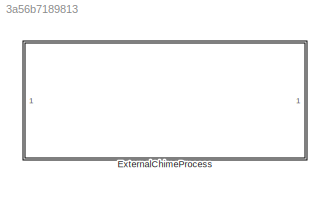
MODEL slx_3a56b7189813
KIND library
CONFIG AbsTol = auto
CONFIG EnableMultiTasking = off
CONFIG FixedStep = auto
CONFIG MaxStep = auto
CONFIG MinStep = auto
CONFIG RelTol = 1e-3
CONFIG SampleTimeConstraint = Unconstrained
CONFIG SolverName = VariableStepAuto
CONFIG StartTime = 0.0
CONFIG StopTime = 10.0
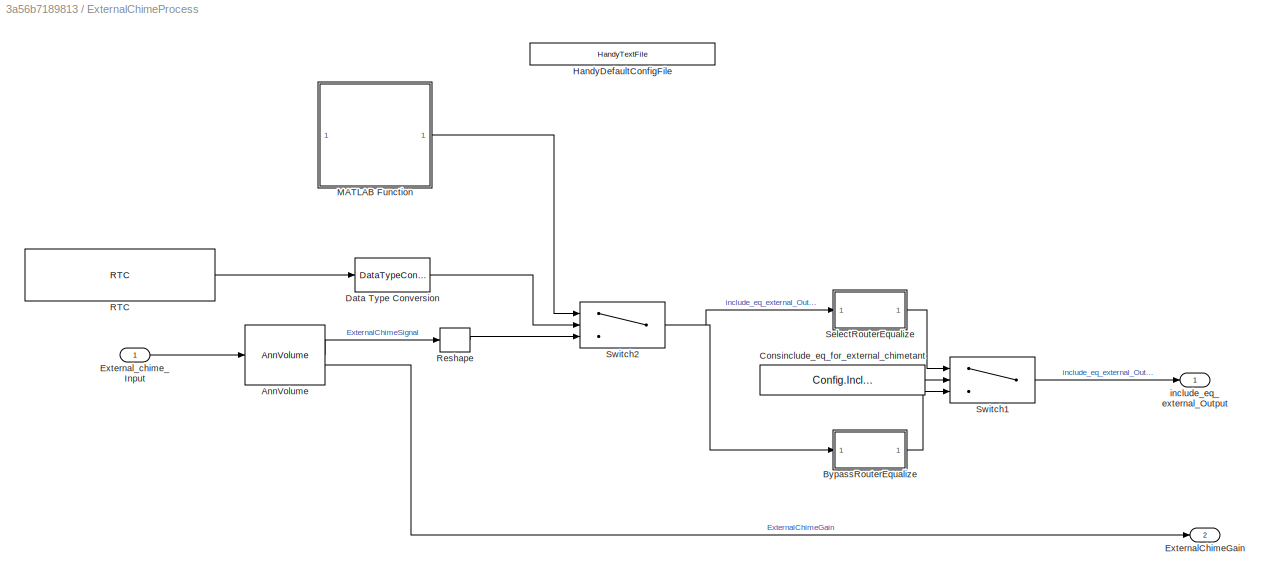
BLOCK [SubSystem] ExternalChimeProcess
BLOCK [Reference] ExternalChimeProcess/AnnVolume  REF=AnnVolumeBtc/AnnVolume
  SourceBlock = AnnVolumeBtc/AnnVolume
  SourceProductName = Bose Blocklib
  SourceType = Blocklib AnnVolume
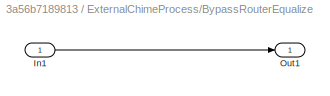
BLOCK [SubSystem] ExternalChimeProcess/BypassRouterEqualize
  TreatAsAtomicUnit = on
BLOCK [Inport] ExternalChimeProcess/BypassRouterEqualize/In1
  OutDataTypeStr = single
BLOCK [Outport] ExternalChimeProcess/BypassRouterEqualize/Out1
  OutDataTypeStr = single
  VectorParamsAs1DForOutWhenUnconnected = off
BLOCK [Constant] ExternalChimeProcess/Consinclude_eq_for_external_chimetant
  OutDataTypeStr = boolean
  Value = Config.IncludeEq
  VectorParams1D = off
BLOCK [DataTypeConversion] ExternalChimeProcess/Data Type Conversion
  OutDataTypeStr = single
  RndMeth = Floor
  SaturateOnIntegerOverflow = off
BLOCK [Outport] ExternalChimeProcess/ExternalChimeGain
  Port = 2
BLOCK [Inport] ExternalChimeProcess/External_chime_Input
BLOCK [Reference] ExternalChimeProcess/HandyDefaultConfigFile  REF=HandyTextFile/HandyTextFile
  SourceBlock = HandyTextFile/HandyTextFile
  SourceProductName = Bose Talaria
  SourceType = Talaria Handy Text File
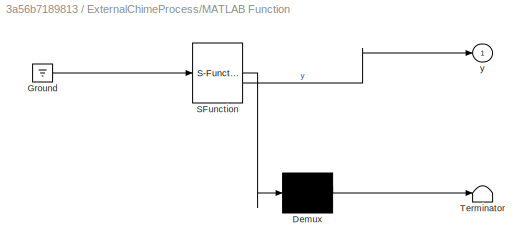
BLOCK [SubSystem] ExternalChimeProcess/MATLAB Function
  ErrorFcn = Stateflow.Translate.translate
  PermitHierarchicalResolution = ExplicitOnly
  SFBlockType = MATLAB Function
  TreatAsAtomicUnit = on
BLOCK [Demux] ExternalChimeProcess/MATLAB Function/ Demux 
  Outputs = 1
BLOCK [Ground] ExternalChimeProcess/MATLAB Function/ Ground 
BLOCK [S-Function] ExternalChimeProcess/MATLAB Function/ SFunction 
  EnableBusSupport = off
  FunctionName = sf_sfun
  Parameters = frameSize,numExtChimes
  PortCounts = [1 2]
  SFcnIsStateOwnerBlock = off
  SFunctionDeploymentMode = off
  Tag = Stateflow S-Function 2
BLOCK [Terminator] ExternalChimeProcess/MATLAB Function/ Terminator 
BLOCK [Outport] ExternalChimeProcess/MATLAB Function/y
BLOCK [Reference] ExternalChimeProcess/RTC  REF=RTC/RTC
  SourceBlock = RTC/RTC
  SourceProductName = Bose Talaria
  SourceType = Talaria RTC Receive
BLOCK [Reshape] ExternalChimeProcess/Reshape
  OutputDimensionality = Customize
  OutputDimensions = [Config.FrameSize,Config.NumExtChimes]
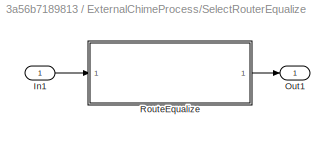
BLOCK [SubSystem] ExternalChimeProcess/SelectRouterEqualize
  TreatAsAtomicUnit = on
BLOCK [Inport] ExternalChimeProcess/SelectRouterEqualize/In1
BLOCK [Outport] ExternalChimeProcess/SelectRouterEqualize/Out1
  VectorParamsAs1DForOutWhenUnconnected = off
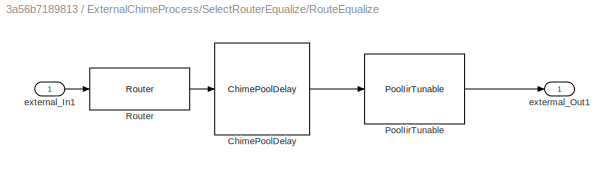
BLOCK [SubSystem] ExternalChimeProcess/SelectRouterEqualize/RouteEqualize
BLOCK [Reference] ExternalChimeProcess/SelectRouterEqualize/RouteEqualize/ChimePoolDelay  REF=ChimePoolDelayLibBtc/ChimePoolDelay
  SourceBlock = ChimePoolDelayLibBtc/ChimePoolDelay
  SourceProductName = Bose Blocklib
  SourceType = Chimes ChimePoolDelay
BLOCK [Reference] ExternalChimeProcess/SelectRouterEqualize/RouteEqualize/PoolIirTunable  REF=PoolIir/PoolIirTunable
  SourceBlock = PoolIir/PoolIirTunable
  SourceProductName = Bose Blocklib
  SourceType = Bose Pool IIR Tunable
BLOCK [Reference] ExternalChimeProcess/SelectRouterEqualize/RouteEqualize/Router  REF=RouterBtc/Router
  SourceBlock = RouterBtc/Router
  SourceProductName = Bose Blocklib
  SourceType = Blocklib Router
BLOCK [Outport] ExternalChimeProcess/SelectRouterEqualize/RouteEqualize/extermal_Out1
  VectorParamsAs1DForOutWhenUnconnected = off
BLOCK [Inport] ExternalChimeProcess/SelectRouterEqualize/RouteEqualize/external_In1
BLOCK [Switch] ExternalChimeProcess/Switch1
  Criteria = u2 ~= 0
  InputSameDT = off
  SaturateOnIntegerOverflow = off
BLOCK [Switch] ExternalChimeProcess/Switch2
  Criteria = u2 ~= 0
  InputSameDT = off
  SaturateOnIntegerOverflow = off
BLOCK [Outport] ExternalChimeProcess/include_eq_external_Output
LINE ExternalChimeProcess/AnnVolume:1 -> ExternalChimeProcess/Reshape:1
LINE ExternalChimeProcess/AnnVolume:2 -> ExternalChimeProcess/ExternalChimeGain:1
LINE ExternalChimeProcess/BypassRouterEqualize/In1:1 -> ExternalChimeProcess/BypassRouterEqualize/Out1:1
LINE ExternalChimeProcess/BypassRouterEqualize:1 -> ExternalChimeProcess/Switch1:3
LINE ExternalChimeProcess/Consinclude_eq_for_external_chimetant:1 -> ExternalChimeProcess/Switch1:2
LINE ExternalChimeProcess/Data Type Conversion:1 -> ExternalChimeProcess/Switch2:2
LINE ExternalChimeProcess/External_chime_Input:1 -> ExternalChimeProcess/AnnVolume:1
LINE ExternalChimeProcess/MATLAB Function:1 -> ExternalChimeProcess/Switch2:1
LINE ExternalChimeProcess/RTC:1 -> ExternalChimeProcess/Data Type Conversion:1
LINE ExternalChimeProcess/Reshape:1 -> ExternalChimeProcess/Switch2:3
LINE ExternalChimeProcess/SelectRouterEqualize/In1:1 -> ExternalChimeProcess/SelectRouterEqualize/RouteEqualize:1
LINE ExternalChimeProcess/SelectRouterEqualize/RouteEqualize/ChimePoolDelay:1 -> ExternalChimeProcess/SelectRouterEqualize/RouteEqualize/PoolIirTunable:1
LINE ExternalChimeProcess/SelectRouterEqualize/RouteEqualize/PoolIirTunable:1 -> ExternalChimeProcess/SelectRouterEqualize/RouteEqualize/extermal_Out1:1
LINE ExternalChimeProcess/SelectRouterEqualize/RouteEqualize/Router:1 -> ExternalChimeProcess/SelectRouterEqualize/RouteEqualize/ChimePoolDelay:1
LINE ExternalChimeProcess/SelectRouterEqualize/RouteEqualize/external_In1:1 -> ExternalChimeProcess/SelectRouterEqualize/RouteEqualize/Router:1
LINE ExternalChimeProcess/SelectRouterEqualize/RouteEqualize:1 -> ExternalChimeProcess/SelectRouterEqualize/Out1:1
LINE ExternalChimeProcess/SelectRouterEqualize:1 -> ExternalChimeProcess/Switch1:1
LINE ExternalChimeProcess/Switch1:1 -> ExternalChimeProcess/include_eq_external_Output:1
NET ExternalChimeProcess/Switch2:1 -> ExternalChimeProcess/BypassRouterEqualize:1, ExternalChimeProcess/SelectRouterEqualize:1
note: NET lines group one-source signal fan-out (src -> all destinations, sorted); 1:1 wires keep LINE
CHART ExternalChimeProcess/MATLAB Function states=1 transitions=1
  STATE_LABEL 'eML_blk_kernel()'
  STATE_LABEL 'SCRIPT:\nfunction y = fcn(frameSize, numExtChimes)\n% simple function to pad zeros for the given frame size and number of\n% channels\ny = single(zeros(frameSize, numExtChimes));\n'
CHART  states=0 transitions=0
